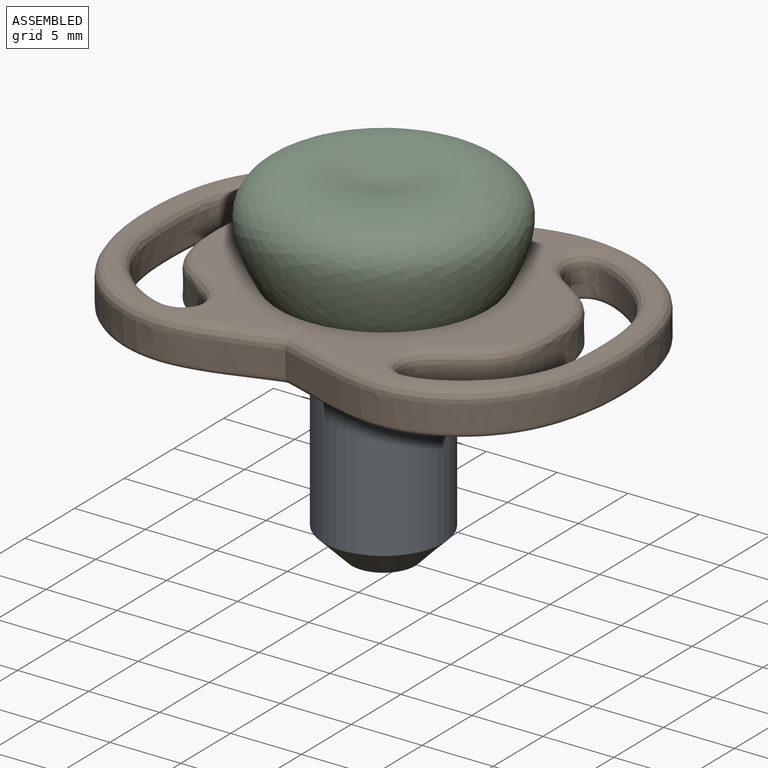
[diagram: assembled view]
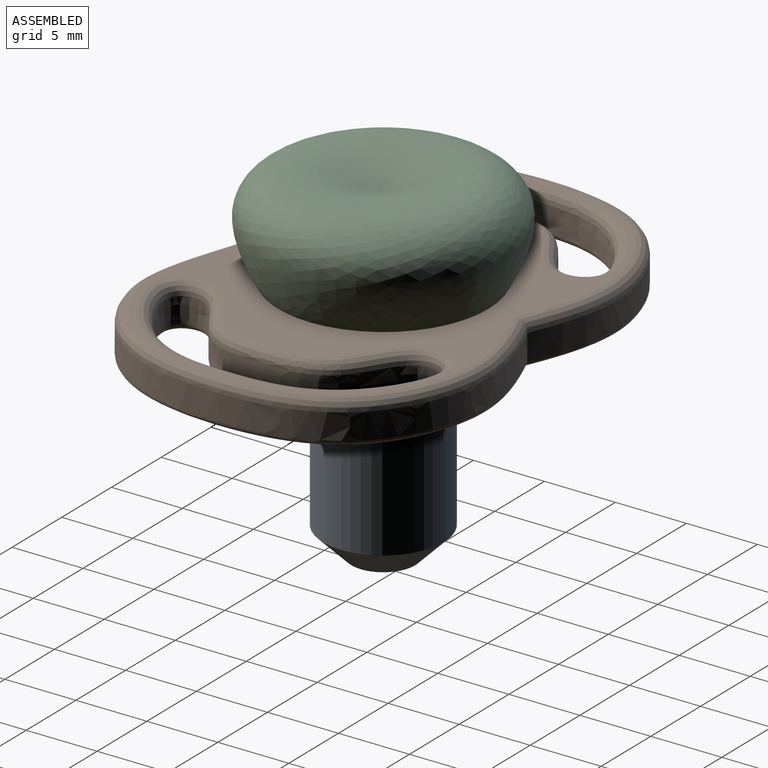
[diagram: assembled view, second angle]
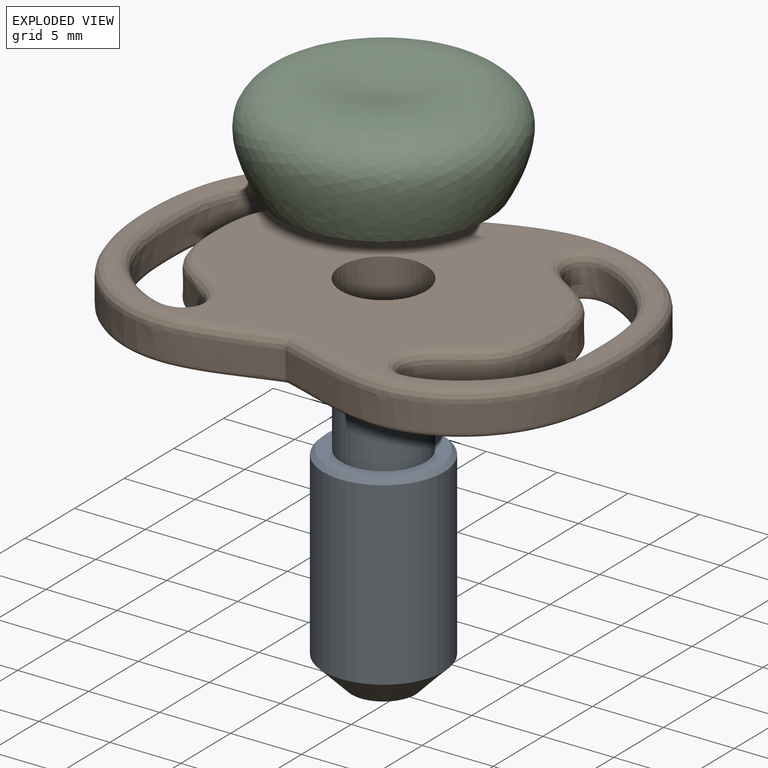
[diagram: exploded view]
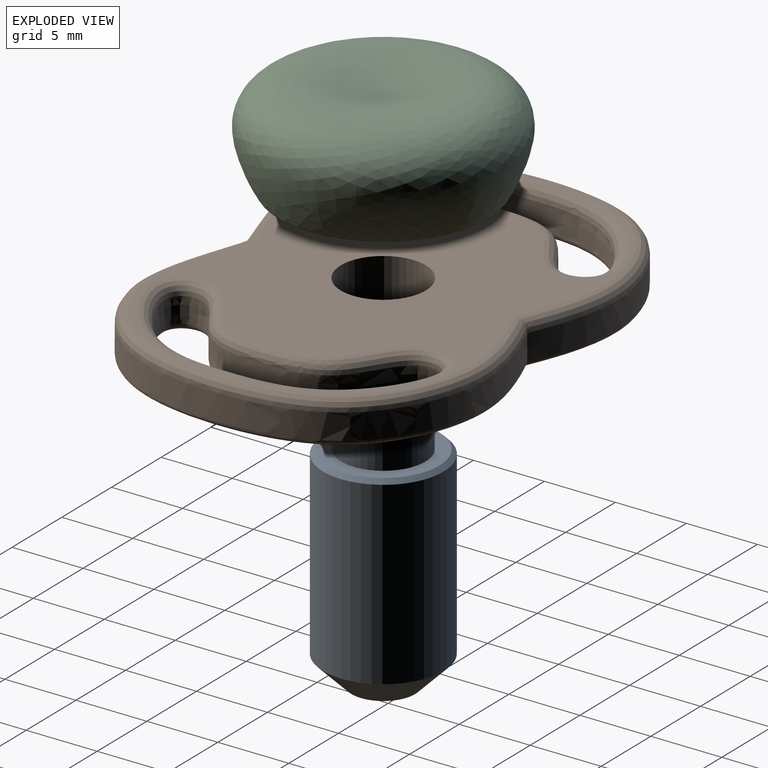
[diagram: exploded view, second angle]
ASSEMBLY  parts=3 mates=2
PART A: 7 faces, bbox 8.5x8.5x21 mm
  f0: cylinder r=4.25mm len=12.7mm, axis (0,0,1), area 339.1mm2, adj f5,f6
  f1: plane 4.5x4.5mm, normal (0,0,-1), area 15.9mm2, adj f5
  f2: plane 7.9x7.9mm, normal (0,0,1), area 21.2mm2, adj f3,f6
  f3: cylinder r=2.98mm len=6mm, axis (0,0,-1), area 112.2mm2, adj f2,f4
  f4: plane 5.95x5.95mm, normal (0,0,1), area 27.8mm2, adj f3
  f5: cone r=4.25mm half-angle=45deg, axis (0,0,1), area 57.8mm2, adj f0,f1
  f6: cone r=3.95mm half-angle=45deg, axis (0,0,-1), area 10.9mm2, adj f0,f2
PART B: 15 faces, bbox 34x23.6x3 mm
  f0: extruded ~23.59x16.98mm, area 88.8mm2, adj f2,f9,f14
  f1: extruded ~19.06x7.94mm, area 91.1mm2, adj f6,f11
  f2: extruded ~23.59x16.98mm, area 88.8mm2, adj f0,f8,f13
  f3: extruded ~19.13x7.97mm, area 90.8mm2, adj f7,f12
  f4: plane 33.16x22.82mm, normal (0,0,-1), area 443.8mm2, adj f10,f11,f12,f13,f14
  f5: plane 32.37x22.02mm, normal (0,0,1), area 362.8mm2, adj f6,f7,f8,f9,f10
  f6: bspline ~20.78x9.58mm, area 66mm2, adj f1,f5
  f7: bspline ~20.78x9.58mm, area 65.9mm2, adj f3,f5
  f8: bspline ~23.62x21.49mm, area 60.9mm2, adj f2,f5,f9
  f9: bspline ~23.63x18.5mm, area 60.9mm2, adj f0,f5,f8
  f10: cylinder r=3mm len=6mm, axis (0,0,-1), area 56.5mm2, adj f4,f5
  f11: bspline ~19.98x8.78mm, area 32.4mm2, adj f1,f4
  f12: bspline ~19.98x8.78mm, area 32.4mm2, adj f3,f4
  f13: bspline ~23.62x17.75mm, area 30.7mm2, adj f2,f4,f14
  f14: bspline ~23.62x17.75mm, area 30.7mm2, adj f0,f4,f13
PART C: 4 faces, bbox 17.5x17.5x6.7 mm
  f0: revolved ~17.47x17.47mm, area 534.3mm2, adj f1
  f1: plane 14.8x14.8mm, normal (0,0,-1), area 143.7mm2, adj f0,f2
  f2: cylinder r=3mm len=6mm, axis (0,0,-1), area 75.4mm2, adj f1,f3
  f3: plane 6x6mm, normal (0,0,-1), area 28.3mm2, adj f2
PLACE A t=(-0.66,25.07,-1.98)mm
PLACE B t=(-0.66,-0.8,0.71)mm fixed
PLACE C t=(-0.66,-0.8,0.71)mm
MATE slider A.f0 <-> B.f10  axis (0,0,1) through (-0.66,-0.8,4.02)mm
MATE slider C.f2 <-> B.f10  axis (0,0,-1) through (-0.66,-0.8,0.71)mm
